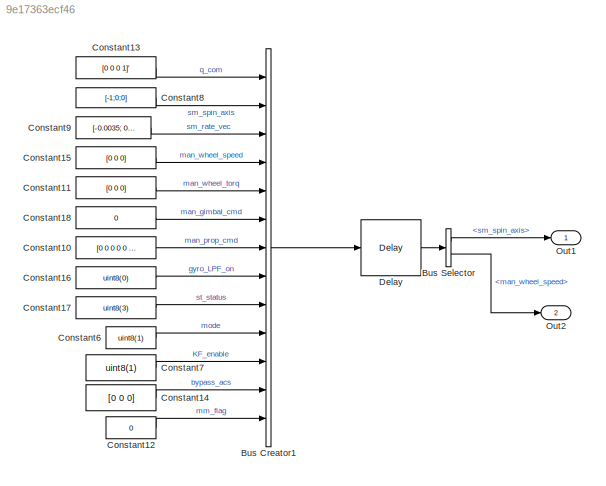
MODEL slx_9e17363ecf46
KIND model
CONFIG AbsTol = auto
CONFIG EnableMultiTasking = on
CONFIG FixedStep = 0.200000
CONFIG MaxStep = auto
CONFIG MinStep = auto
CONFIG PreLoadFcn = cellInfo =  {\n  { ...\n    'acs_command_msg', ...\n    '', ...\n    sprintf(''), { ...\n      {'torque_com_wheel', 3, 'double', -1, 'real', 'Sample'}; ...\n      {'thruster_on_times', 6, 'double', -1, 'real', 'Sample'}; ...\n   }\n  }\n};\nSimulink.Bus.cellToObject(cellInfo); \n\n \ncellInfo = {\n    { ...\n         'command_state_msg' , ...\n         '', ...\n         sprintf(''), {  ...\n               {  'q_com...<+1002ch>
CONFIG RelTol = 1e-3
CONFIG SampleTimeConstraint = Unconstrained
CONFIG Solver = FixedStepDiscrete
CONFIG SolverName = FixedStepDiscrete
CONFIG StartTime = 0.0
CONFIG StopTime = 10.0
BLOCK [BusCreator] Bus Creator1
  DisplayOption = bar
  InheritFromInputs = off
  Inputs = 13
  NonVirtualBus = on
  OutDataTypeStr = Bus: command_state_msg
  Ports = [13, 1]
BLOCK [BusSelector] Bus Selector
  OutputAsBus = off
  OutputSignals = sm_spin_axis,man_wheel_speed
  Ports = [1, 2]
BLOCK [Constant] Constant10
  OutDataTypeStr = uint16
  SampleTime = dt
  Value = [0 0 0 0 0 0 0 0]
BLOCK [Constant] Constant11
  OutDataTypeStr = single
  SampleTime = dt
  Value = [0 0 0]
BLOCK [Constant] Constant12
  OutDataTypeStr = uint8
  SampleTime = dt
  Value = 0
BLOCK [Constant] Constant13
  OutDataTypeStr = Inherit: Inherit via back propagation
  SampleTime = dt
  Value = [0 0 0 1]'
BLOCK [Constant] Constant14
  OutDataTypeStr = uint8
  SampleTime = dt
  Value = [0 0 0]
BLOCK [Constant] Constant15
  OutDataTypeStr = single
  SampleTime = dt
  Value = [0 0 0]
BLOCK [Constant] Constant16
  SampleTime = dt
  Value = uint8(0)
BLOCK [Constant] Constant17
  SampleTime = dt
  Value = uint8(3)
BLOCK [Constant] Constant18
  OutDataTypeStr = int16
  SampleTime = dt
  Value = 0
BLOCK [Constant] Constant6
  SampleTime = dt
  Value = uint8(1)
BLOCK [Constant] Constant7
  SampleTime = dt
  Value = uint8(1)
BLOCK [Constant] Constant8
  OutDataTypeStr = Inherit: Inherit via back propagation
  SampleTime = dt
  Value = [-1;0;0]
BLOCK [Constant] Constant9
  OutDataTypeStr = Inherit: Inherit via back propagation
  SampleTime = dt
  Value = [-0.0035; 0; 0]
BLOCK [Delay] Delay
  InputPortMap = u0
  Ports = [1, 1]
BLOCK [Outport] Out1
  IconDisplay = Port number
BLOCK [Outport] Out2
  IconDisplay = Port number
  Port = 2
LINE Bus Creator1:1 -> Delay:1
LINE Bus Selector:1 -> Out1:1
LINE Bus Selector:2 -> Out2:1
LINE Constant10:1 -> Bus Creator1:7
LINE Constant11:1 -> Bus Creator1:5
LINE Constant12:1 -> Bus Creator1:13
LINE Constant13:1 -> Bus Creator1:1
LINE Constant14:1 -> Bus Creator1:12
LINE Constant15:1 -> Bus Creator1:4
LINE Constant16:1 -> Bus Creator1:8
LINE Constant17:1 -> Bus Creator1:9
LINE Constant18:1 -> Bus Creator1:6
LINE Constant6:1 -> Bus Creator1:10
LINE Constant7:1 -> Bus Creator1:11
LINE Constant8:1 -> Bus Creator1:2
LINE Constant9:1 -> Bus Creator1:3
LINE Delay:1 -> Bus Selector:1
